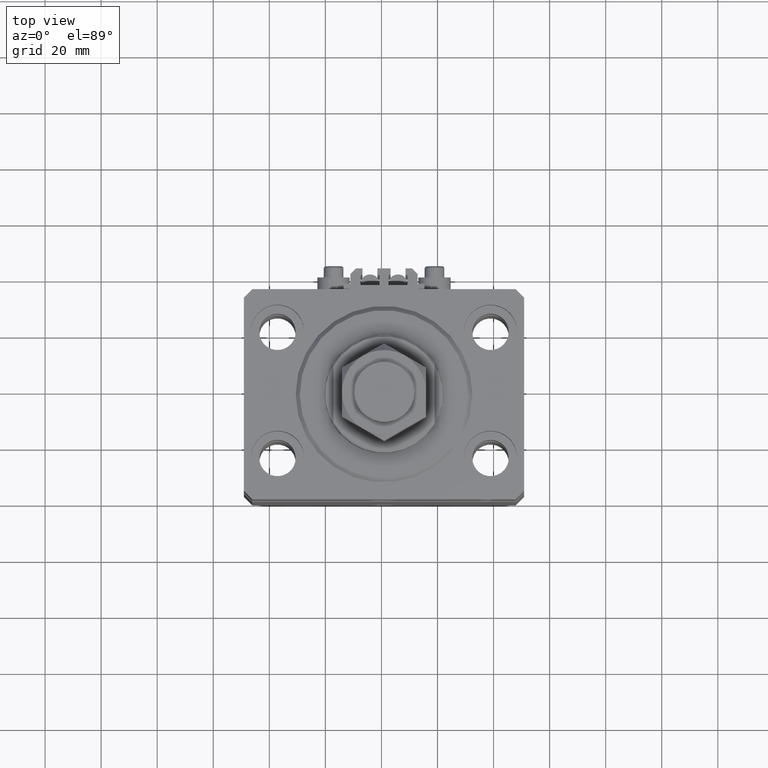
[diagram: clean part render]
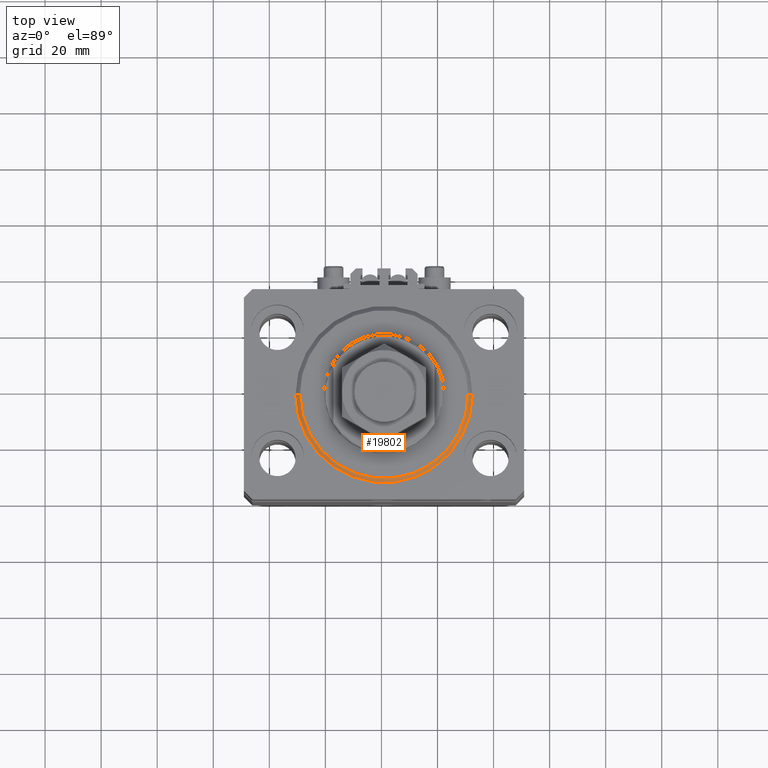
[diagram: same view with one face highlighted and labeled with its STEP entity id]
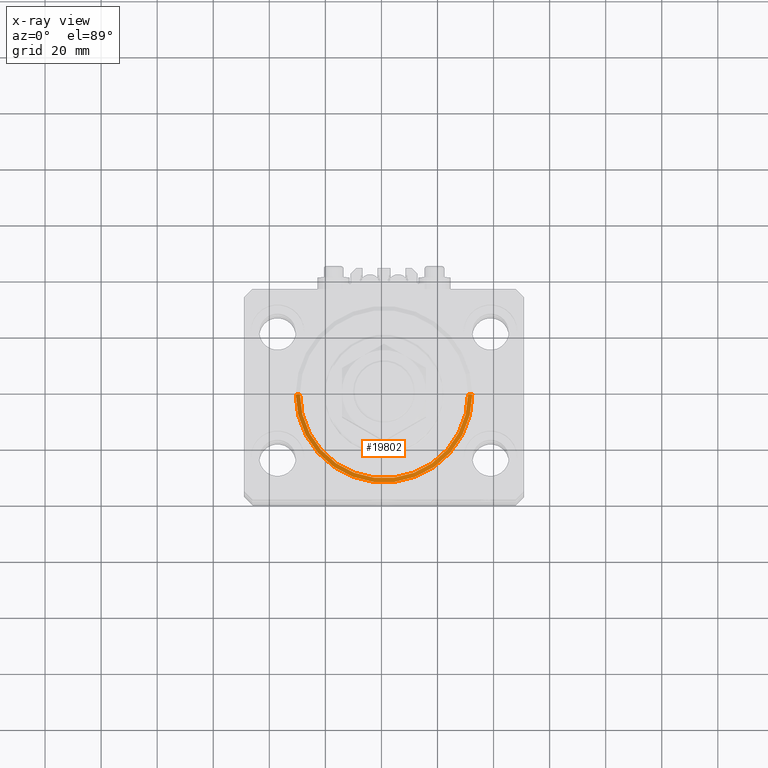
[diagram: x-ray of the same camera — body ghosted, the highlighted face saturated]
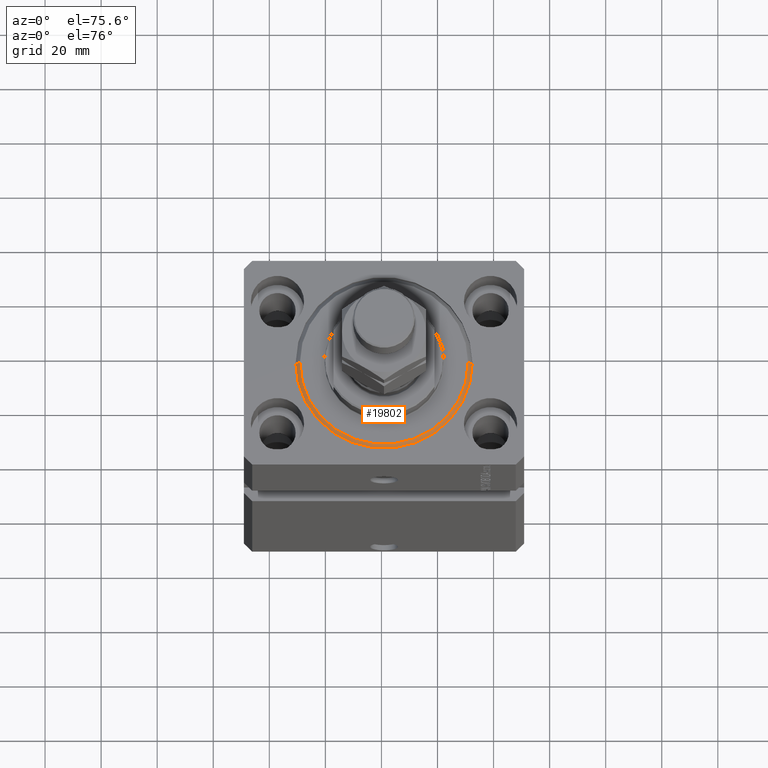
[diagram: same view with one face highlighted and labeled with its STEP entity id]
A machine part, top view. The second image highlights one B-rep face of the part: STEP entity #19802.
The next image is the same camera in x-ray: the body ghosted, the highlighted face saturated — about 0% of this face is hidden behind the body in this view.
A second angle (auxiliary view) of the same face is appended — the face is thin or edge-on in the first view.
In plain terms, the highlighted conical surface has half-angle 45 deg.
Its self-contained STEP definition (entity closure, byte-faithful):
#983 = EDGE_CURVE ( 'NONE', #13368, #47720, #15526, .T. ) ;
#1571 = DIRECTION ( 'NONE',  ( 1.000000000000000000, 0.000000000000000000, 0.000000000000000000 ) ) ;
#1754 = CIRCLE ( 'NONE', #30403, 30.00000000000002132 ) ;
#8179 = CIRCLE ( 'NONE', #36789, 31.50000000000000000 ) ;
#9280 = DIRECTION ( 'NONE',  ( -0.000000000000000000, -0.000000000000000000, 1.000000000000000000 ) ) ;
#10156 = VERTEX_POINT ( 'NONE', #40754 ) ;
#13363 = ORIENTED_EDGE ( 'NONE', *, *, #22565, .T. ) ;
#13368 = VERTEX_POINT ( 'NONE', #38709 ) ;
#13925 = DIRECTION ( 'NONE',  ( 0.7071067811865474617, 0.000000000000000000, 0.7071067811865474617 ) ) ;
#14139 = VECTOR ( 'NONE', #27798, 1000.000000000000114 ) ;
#15267 = AXIS2_PLACEMENT_3D ( 'NONE', #46538, #22959, #27058 ) ;
#15526 = LINE ( 'NONE', #23209, #14139 ) ;
#16920 = CARTESIAN_POINT ( 'NONE',  ( -31.50000000000000000, 0.000000000000000000, 1.499999999999980460 ) ) ;
#19802 = ADVANCED_FACE ( 'NONE', ( #23472 ), #20186, .T. ) ;
#20186 = CONICAL_SURFACE ( 'NONE', #15267, 31.50000000000000000, 0.7853981633974482790 ) ;
#20770 = VERTEX_POINT ( 'NONE', #27126 ) ;
#22565 = EDGE_CURVE ( 'NONE', #20770, #10156, #40563, .T. ) ;
#22959 = DIRECTION ( 'NONE',  ( -0.000000000000000000, -0.000000000000000000, 1.000000000000000000 ) ) ;
#23209 = CARTESIAN_POINT ( 'NONE',  ( -31.50000000000000000, 3.857637417314162689E-15, 1.499999999999980460 ) ) ;
#23472 = FACE_OUTER_BOUND ( 'NONE', #40171, .T. ) ;
#24701 = CARTESIAN_POINT ( 'NONE',  ( 31.50000000000000000, 0.000000000000000000, 1.499999999999980460 ) ) ;
#24857 = DIRECTION ( 'NONE',  ( -0.000000000000000000, -0.000000000000000000, -1.000000000000000000 ) ) ;
#27058 = DIRECTION ( 'NONE',  ( 1.000000000000000000, 0.000000000000000000, 0.000000000000000000 ) ) ;
#27126 = CARTESIAN_POINT ( 'NONE',  ( 30.00000000000002132, 0.000000000000000000, 0.000000000000000000 ) ) ;
#27798 = DIRECTION ( 'NONE',  ( -0.7071067811865474617, 8.659560562354932858E-17, 0.7071067811865474617 ) ) ;
#29439 = CARTESIAN_POINT ( 'NONE',  ( 0.000000000000000000, 0.000000000000000000, 0.000000000000000000 ) ) ;
#30403 = AXIS2_PLACEMENT_3D ( 'NONE', #29439, #24857, #40948 ) ;
#30878 = ORIENTED_EDGE ( 'NONE', *, *, #983, .F. ) ;
#34751 = EDGE_CURVE ( 'NONE', #20770, #13368, #1754, .T. ) ;
#34974 = VECTOR ( 'NONE', #13925, 1000.000000000000114 ) ;
#36789 = AXIS2_PLACEMENT_3D ( 'NONE', #46710, #9280, #1571 ) ;
#37156 = ORIENTED_EDGE ( 'NONE', *, *, #34751, .F. ) ;
#38709 = CARTESIAN_POINT ( 'NONE',  ( -30.00000000000002132, 3.765788907378112117E-15, 0.000000000000000000 ) ) ;
#40171 = EDGE_LOOP ( 'NONE', ( #30878, #37156, #13363, #45938 ) ) ;
#40563 = LINE ( 'NONE', #24701, #34974 ) ;
#40754 = CARTESIAN_POINT ( 'NONE',  ( 31.50000000000000000, 3.857637417314162689E-15, 1.499999999999980460 ) ) ;
#40948 = DIRECTION ( 'NONE',  ( 1.000000000000000000, 0.000000000000000000, 0.000000000000000000 ) ) ;
#41275 = EDGE_CURVE ( 'NONE', #47720, #10156, #8179, .T. ) ;
#45938 = ORIENTED_EDGE ( 'NONE', *, *, #41275, .F. ) ;
#46538 = CARTESIAN_POINT ( 'NONE',  ( 0.000000000000000000, 0.000000000000000000, 1.499999999999980460 ) ) ;
#46710 = CARTESIAN_POINT ( 'NONE',  ( 0.000000000000000000, 0.000000000000000000, 1.499999999999980460 ) ) ;
#47720 = VERTEX_POINT ( 'NONE', #16920 ) ;